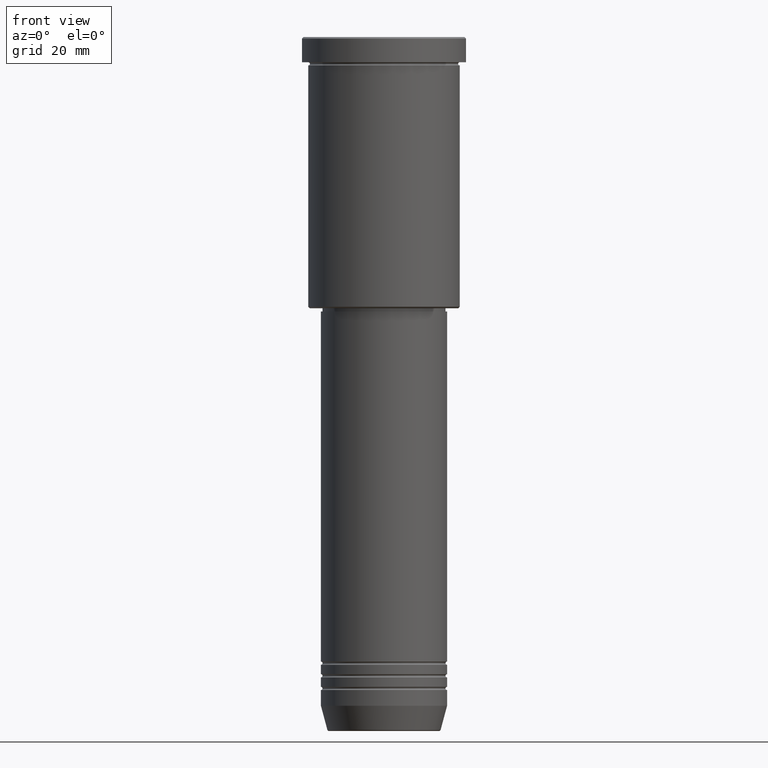
[diagram: clean part render]
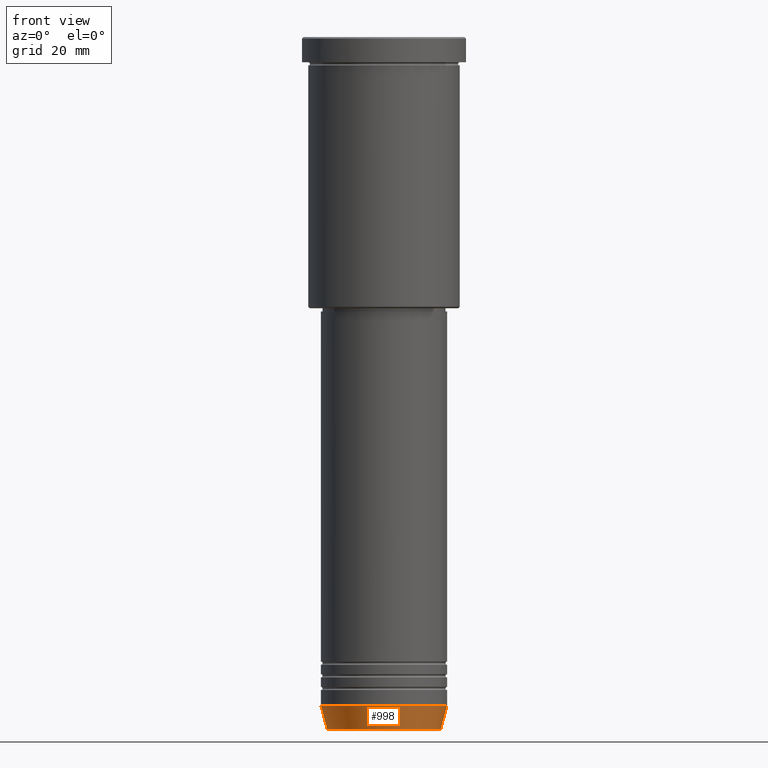
[diagram: same view with one face highlighted and labeled with its STEP entity id]
A machine part, front view. The second image highlights one B-rep face of the part: STEP entity #998.
In plain terms, the highlighted conical surface has half-angle 15 deg.
Its self-contained STEP definition (entity closure, byte-faithful):
#34 = AXIS2_PLACEMENT_3D ( 'NONE', #185, #549, #568 ) ;
#66 = AXIS2_PLACEMENT_3D ( 'NONE', #324, #174, #67 ) ;
#67 = DIRECTION ( 'NONE',  ( 1.000000000000000000, 0.000000000000000000, 0.000000000000000000 ) ) ;
#100 = VERTEX_POINT ( 'NONE', #355 ) ;
#124 = ORIENTED_EDGE ( 'NONE', *, *, #601, .T. ) ;
#129 = DIRECTION ( 'NONE',  ( 1.000000000000000000, 0.000000000000000000, 0.000000000000000000 ) ) ;
#174 = DIRECTION ( 'NONE',  ( -0.000000000000000000, -0.000000000000000000, 1.000000000000000000 ) ) ;
#185 = CARTESIAN_POINT ( 'NONE',  ( 0.000000000000000000, 0.000000000000000000, -219.6294095225512422 ) ) ;
#199 = DIRECTION ( 'NONE',  ( -0.2588190451025213501, 3.169619151431772337E-17, 0.9659258262890680902 ) ) ;
#233 = VECTOR ( 'NONE', #199, 1000.000000000000000 ) ;
#240 = CIRCLE ( 'NONE', #34, 17.95570587970607690 ) ;
#259 = FACE_OUTER_BOUND ( 'NONE', #785, .T. ) ;
#261 = LINE ( 'NONE', #334, #1181 ) ;
#294 = CARTESIAN_POINT ( 'NONE',  ( 0.000000000000000000, 0.000000000000000000, -212.0000000000000000 ) ) ;
#321 = VERTEX_POINT ( 'NONE', #344 ) ;
#324 = CARTESIAN_POINT ( 'NONE',  ( 0.000000000000000000, 0.000000000000000000, -212.0000000000000000 ) ) ;
#334 = CARTESIAN_POINT ( 'NONE',  ( 20.00000000000000355, 0.000000000000000000, -212.0000000000000000 ) ) ;
#338 = VERTEX_POINT ( 'NONE', #719 ) ;
#344 = CARTESIAN_POINT ( 'NONE',  ( 17.95570587970607690, 0.000000000000000000, -219.6294095225512422 ) ) ;
#355 = CARTESIAN_POINT ( 'NONE',  ( -20.00000000000000355, 2.449293598294706907E-15, -212.0000000000000000 ) ) ;
#405 = ORIENTED_EDGE ( 'NONE', *, *, #643, .T. ) ;
#444 = CONICAL_SURFACE ( 'NONE', #66, 20.00000000000000355, 0.2617993877991500740 ) ;
#463 = ORIENTED_EDGE ( 'NONE', *, *, #842, .F. ) ;
#491 = CIRCLE ( 'NONE', #942, 20.00000000000000355 ) ;
#526 = VERTEX_POINT ( 'NONE', #563 ) ;
#549 = DIRECTION ( 'NONE',  ( -0.000000000000000000, -0.000000000000000000, 1.000000000000000000 ) ) ;
#563 = CARTESIAN_POINT ( 'NONE',  ( -17.95570587970607690, 2.324116685748021371E-15, -219.6294095225512422 ) ) ;
#568 = DIRECTION ( 'NONE',  ( 1.000000000000000000, 0.000000000000000000, 0.000000000000000000 ) ) ;
#601 = EDGE_CURVE ( 'NONE', #321, #338, #261, .T. ) ;
#610 = DIRECTION ( 'NONE',  ( 0.2588190451025213501, 0.000000000000000000, 0.9659258262890680902 ) ) ;
#643 = EDGE_CURVE ( 'NONE', #526, #321, #240, .T. ) ;
#719 = CARTESIAN_POINT ( 'NONE',  ( 20.00000000000000355, 0.000000000000000000, -212.0000000000000000 ) ) ;
#775 = LINE ( 'NONE', #1142, #233 ) ;
#785 = EDGE_LOOP ( 'NONE', ( #1154, #405, #124, #463 ) ) ;
#842 = EDGE_CURVE ( 'NONE', #100, #338, #491, .T. ) ;
#844 = DIRECTION ( 'NONE',  ( -0.000000000000000000, -0.000000000000000000, 1.000000000000000000 ) ) ;
#942 = AXIS2_PLACEMENT_3D ( 'NONE', #294, #844, #129 ) ;
#998 = ADVANCED_FACE ( 'NONE', ( #259 ), #444, .T. ) ;
#1020 = EDGE_CURVE ( 'NONE', #526, #100, #775, .T. ) ;
#1142 = CARTESIAN_POINT ( 'NONE',  ( -20.00000000000000355, 2.449293598294706907E-15, -212.0000000000000000 ) ) ;
#1154 = ORIENTED_EDGE ( 'NONE', *, *, #1020, .F. ) ;
#1181 = VECTOR ( 'NONE', #610, 1000.000000000000000 ) ;